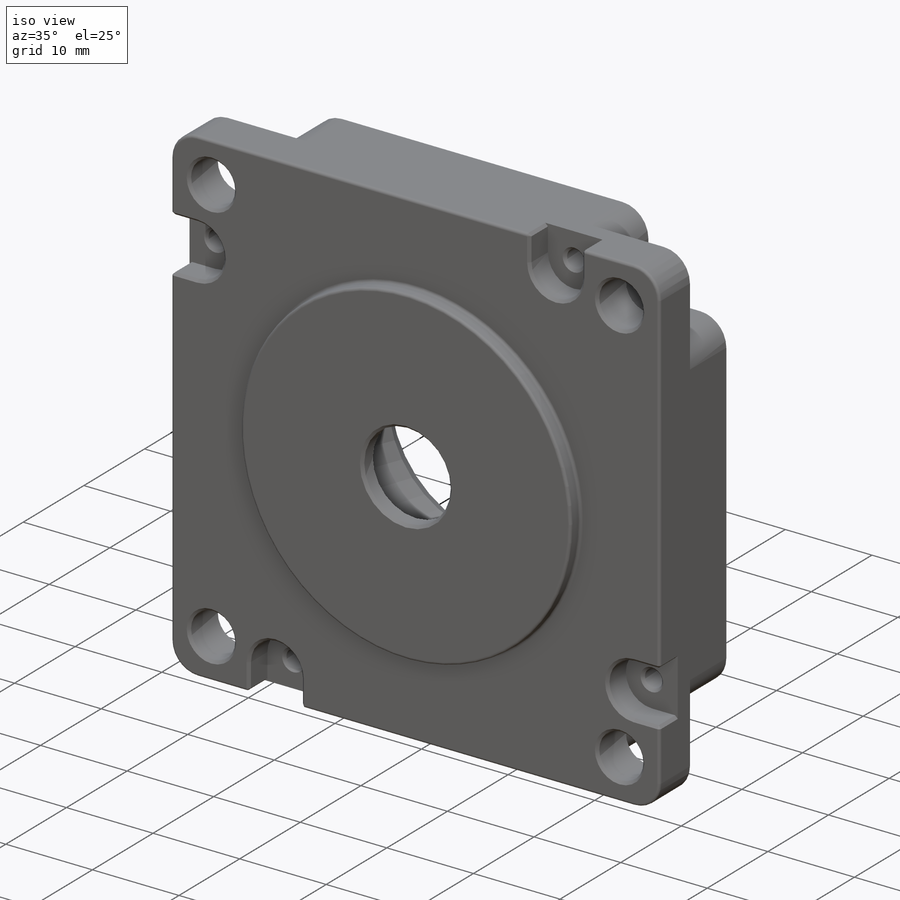
[diagram: iso view]
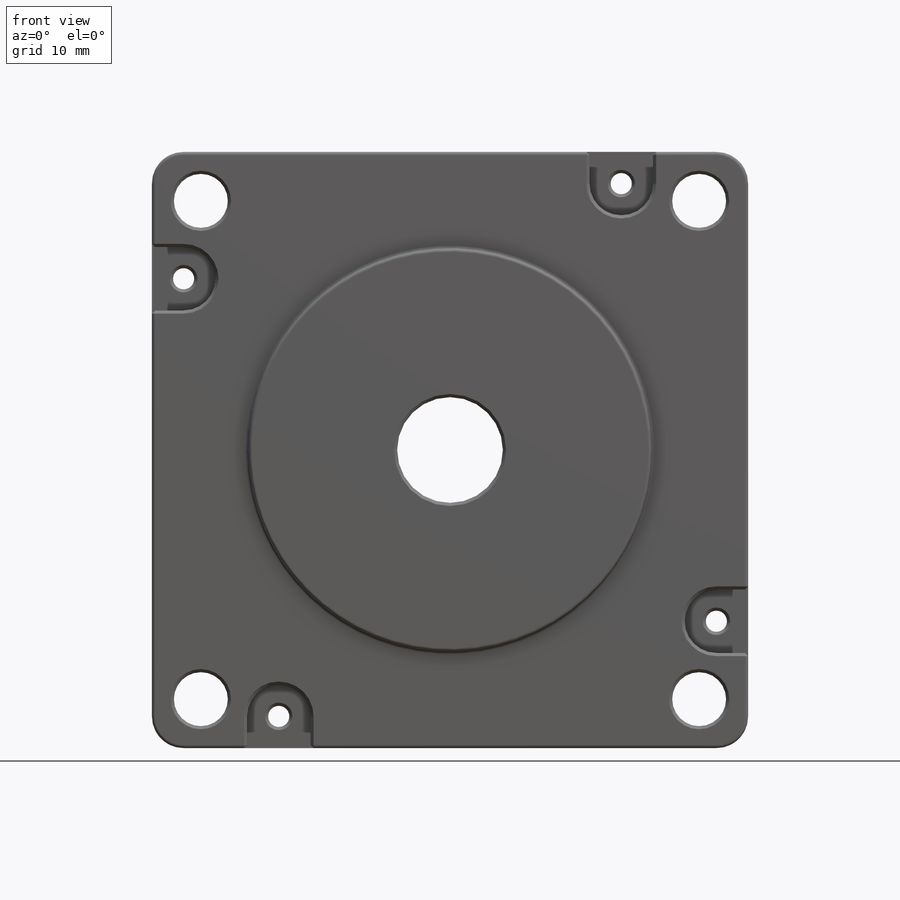
[diagram: front view]
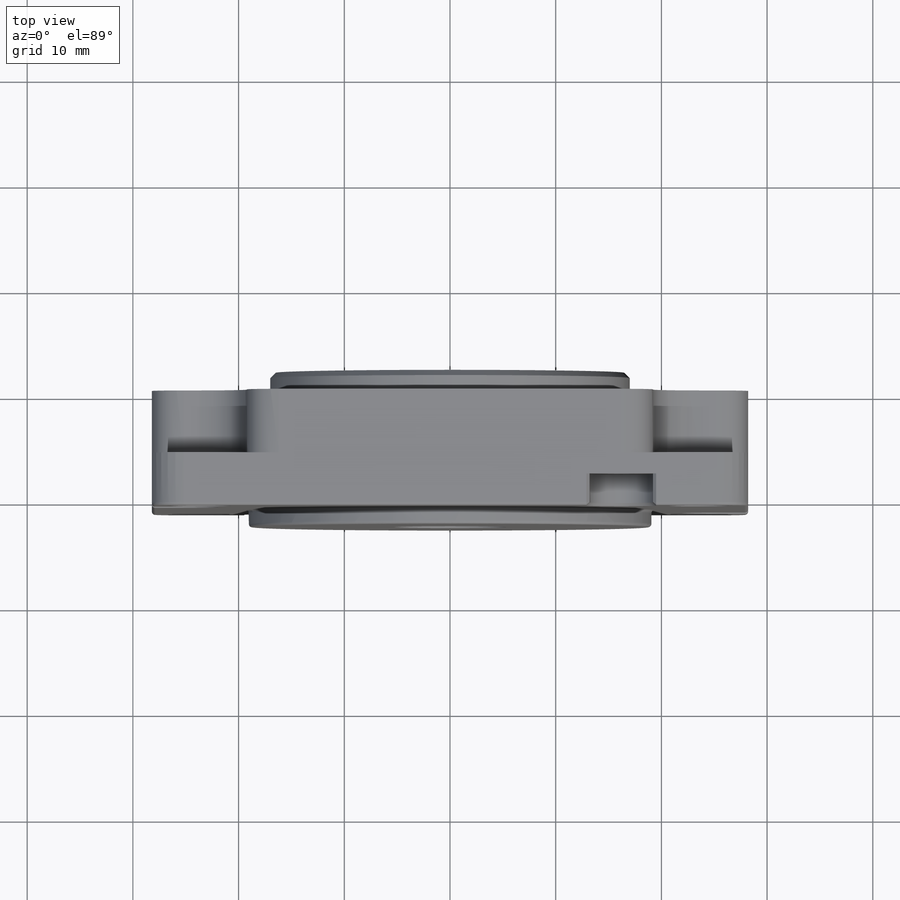
[diagram: top view]
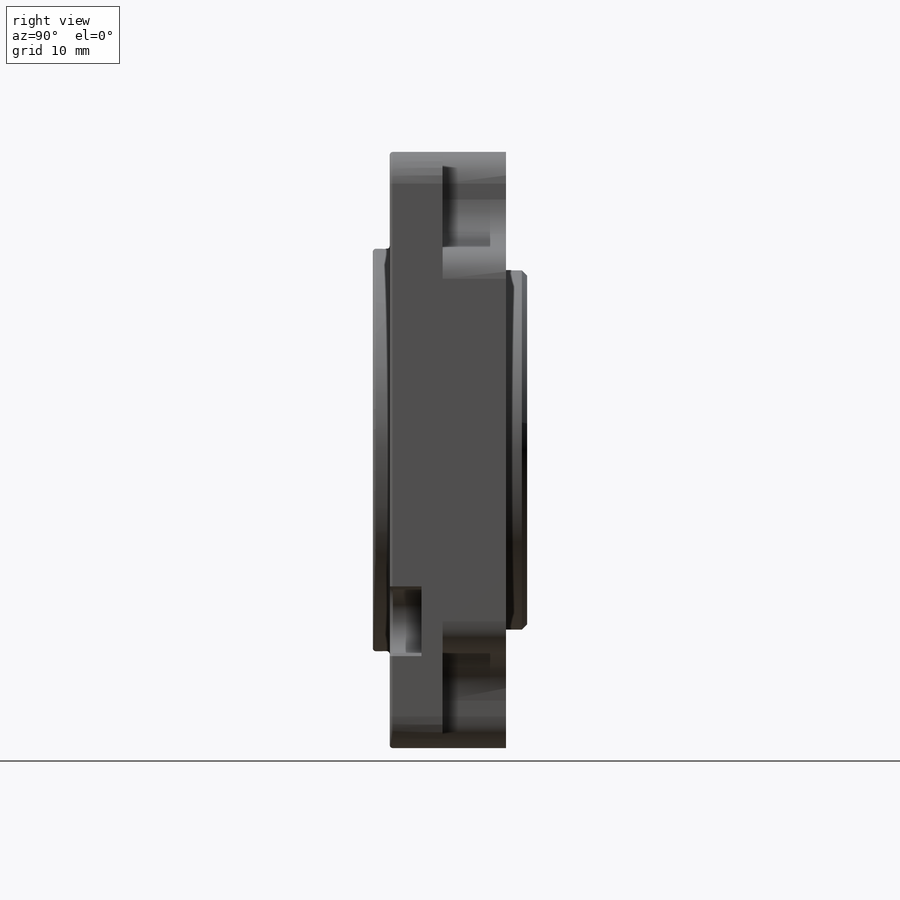
[diagram: right view]
SOLIDWORKS PART (.sldprt)
format: sldprt  version: not decoded by parser v0  size: 583,168 bytes
history: native  units: mm
features: sketch x9, cut_extrude x5, chamfer x5, extrude x4, material x1, fillet x1 (+11 scaffold rows collapsed)
feature tree (36):
  scaffold x11  (default folders/planes/origin — collapsed)
  material  "1060 Alloy"
  sketch  "Sketch1"  dims[c1.D3=5.1mm c2.D3=10.0mm c2.D4=5.1mm c2.D7=2.0mm c2.D1=56.4mm c2.D2=47.14mm c3.D4=3.0mm c3.D1=56.4mm c3.D2=3.0mm c3.D5=47.14mm c3.D6=48.4mm c3.D8=12.0mm]
  extrude  "Boss-Extrude1"  Depth=11mm
  sketch  "Sketch2"  dims[D1=38.1mm]
  extrude  "Boss-Extrude2"  Depth=1.6mm
  sketch  "Sketch3"  dims[c1.D1=56.4mm c1.D2=9.0mm c1.D3=56.4mm c2.D2=9.0mm c2.D3=6.0mm c2.D4=3.0mm c2.D5=9.0mm]
  cut_extrude  "Cut-Extrude1"  Depth=3mm
  fillet  "Fillet1"  Radius=0.3mm
  chamfer  "Chamfer1"  Distance=0.3mm Angle=45deg
  sketch  "Sketch4"  dims[D3=6.0mm D1=56.4mm D2=47.4mm]
  cut_extrude  "Cut-Extrude2"  Depth=6mm
  chamfer  "Chamfer2"  Distance=0.3mm Angle=45deg
  sketch  "Sketch5"  dims[c1.D1=52.2mm c1.D2=52.2mm c2.D1=52.2mm c2.D2=~30.137684mm]
  cut_extrude  "Cut-Extrude3"  Depth=8mm
  sketch  "Sketch6"  dims[D1=18.0mm]
  cut_extrude  "Cut-Extrude4"  Depth=2.6mm
  sketch  "Sketch7"  dims[D1=22.0mm]
  cut_extrude  "Cut-Extrude5"  Depth=1.6mm
  sketch  "Sketch8"  dims[D1=35.0mm]
  extrude  "Boss-Extrude3"  Depth=3mm
  sketch  "Sketch9"  dims[D1=34.0mm]
  extrude  "Boss-Extrude4"  Depth=7mm
  chamfer  "Chamfer3"  Distance=0.3mm Angle=45deg
  chamfer  "Chamfer4"  Distance=0.5mm Angle=45deg
  chamfer  "Chamfer5"  Distance=1mm Angle=60deg
decode coverage: 24 of 24 modeling features carry decoded parameters
note: ~ marks probable driven/reference dimensions
note: suppression state not decoded; provenance and decode notes live in map.json
